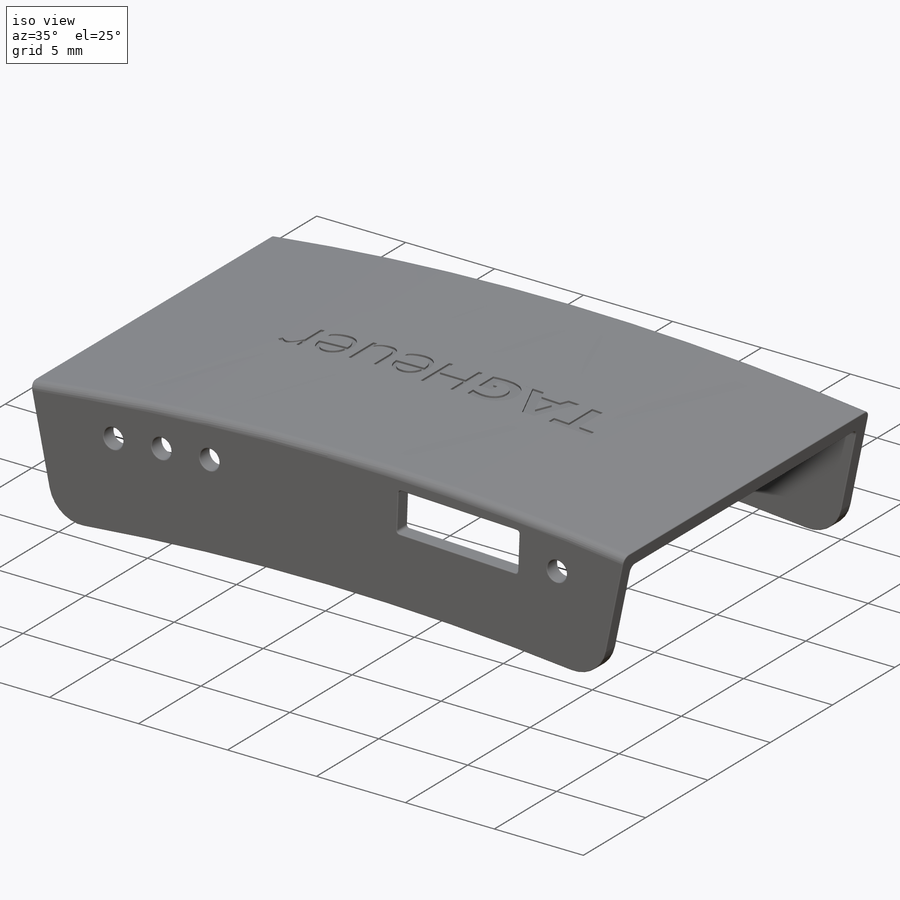
[diagram: iso view]
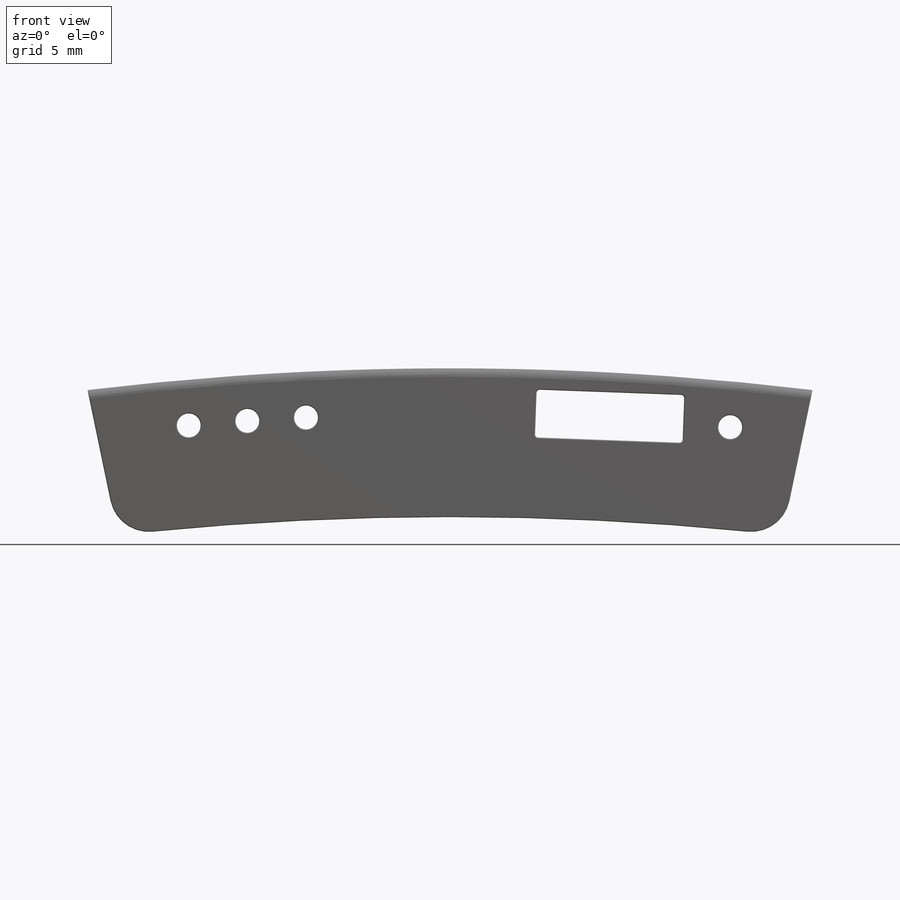
[diagram: front view]
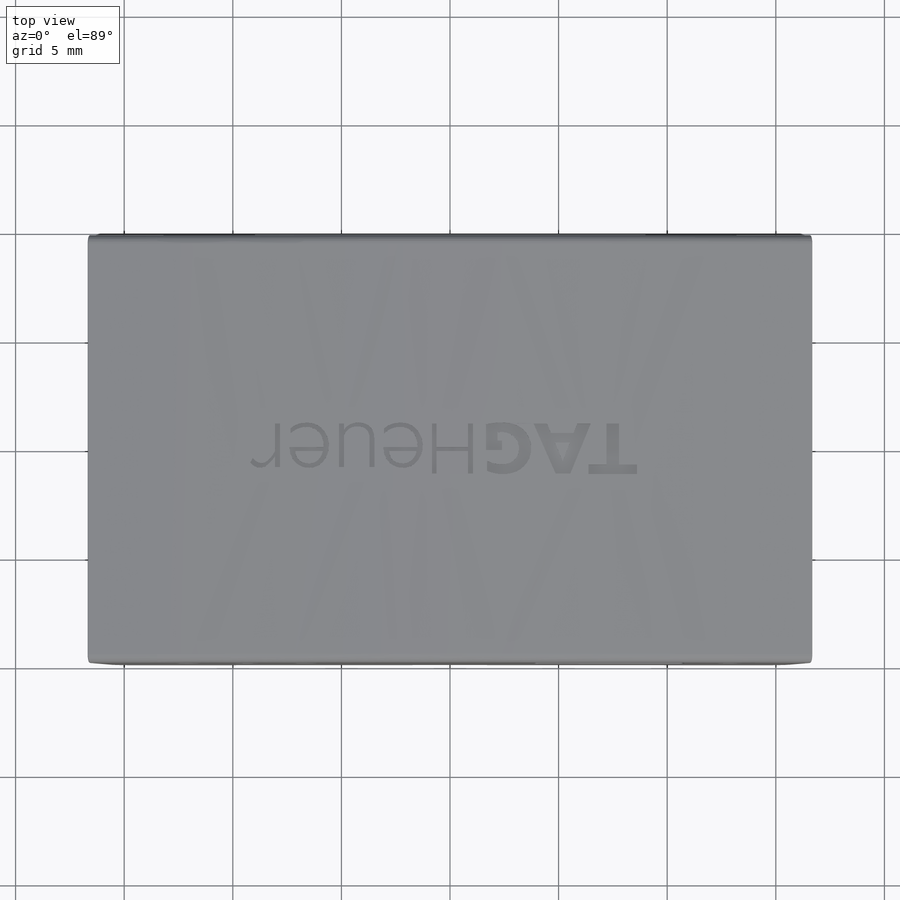
[diagram: top view]
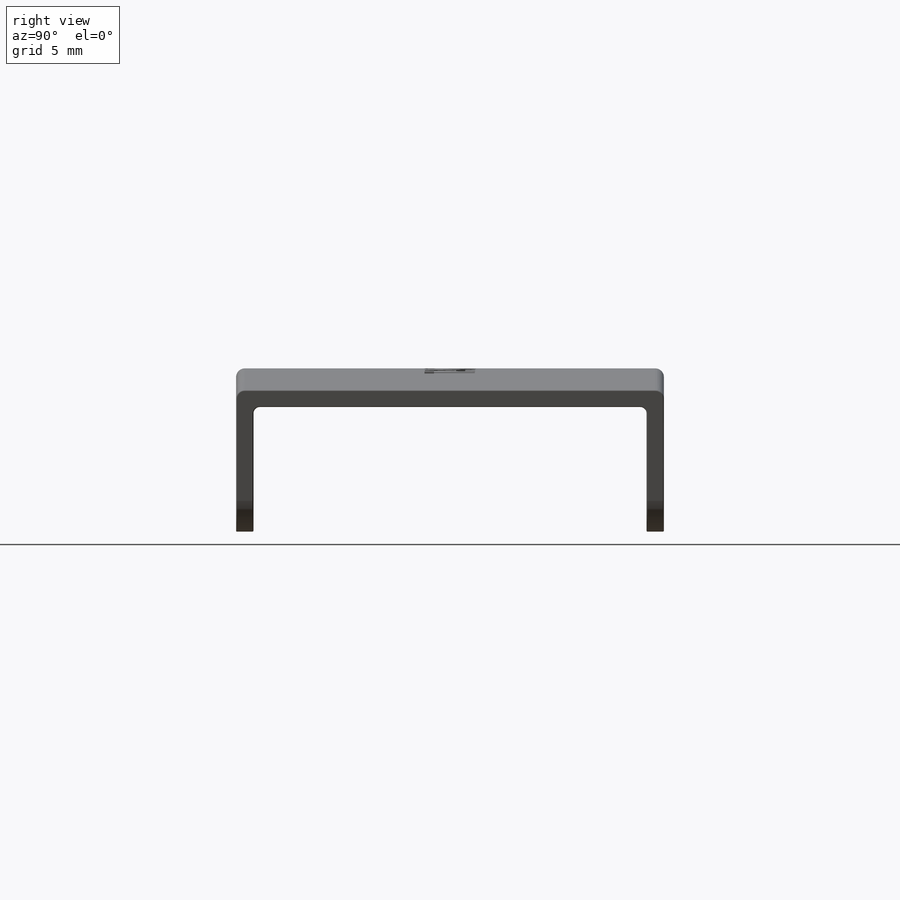
[diagram: right view]
SOLIDWORKS PART (.sldprt)
format: sldprt  version: not decoded by parser v0  size: 772,608 bytes
history: native  units: mm
features: sketch x7, fillet x6, cut_extrude x5, material x1, extrude x1 (+11 scaffold rows collapsed)
feature tree (31):
  scaffold x11  (default folders/planes/origin — collapsed)
  material  "Material <not specified>"
  sketch  "Sketch1"  dims[D1=33.8mm D2=16.9mm D3=7.7mm D4=3.85mm]
  extrude  "Boss-Extrude1"  Depth=19.7mm
  sketch  "Sketch2"  dims[D1=1.6mm D2=1.6mm]
  cut_extrude  "Cut-Extrude1"  Depth=29.7mm
  sketch  "Sketch3"  dims[D1=140.0mm D6=140.0mm D2=2.8mm D3=2.8mm D4=17.0mm D5=17.0mm]
  cut_extrude  "Cut-Extrude2"  Depth=29.7mm
  fillet  "Fillet1"  Radius=1.8mm
  sketch  "Sketch7"  dims[D1=0.6mm]
  sketch  "Sketch4"  dims[c1.D1=1.1mm c1.D2=1.1mm c1.D3=1.1mm c1.D4=1.1mm c1.D7=1.1mm c1.D8=1.1mm c1.D5=2.2mm c1.D6=6.8mm c2.D7=2.7mm c2.D8=2.7mm]
  cut_extrude  "Cut-Extrude3"  Depth=29.7mm
  sketch  "Sketch5"  dims[D1=0.8mm]
  cut_extrude  "Cut-Extrude4"  Depth=18.1mm
  fillet  "Fillet2"  Radius=0.4mm
  fillet  "Fillet3"  Radius=0.3mm
  fillet  "Fillet4"  Radius=0.05mm
  fillet  "Fillet5"  Radius=0.15mm
  fillet  "Fillet6"  Radius=0.05mm
  sketch  "Sketch6"
  cut_extrude  "Cut-Extrude5"  Depth=0.1mm
decode coverage: 18 of 19 modeling features carry decoded parameters
note: suppression state not decoded; provenance and decode notes live in map.json
